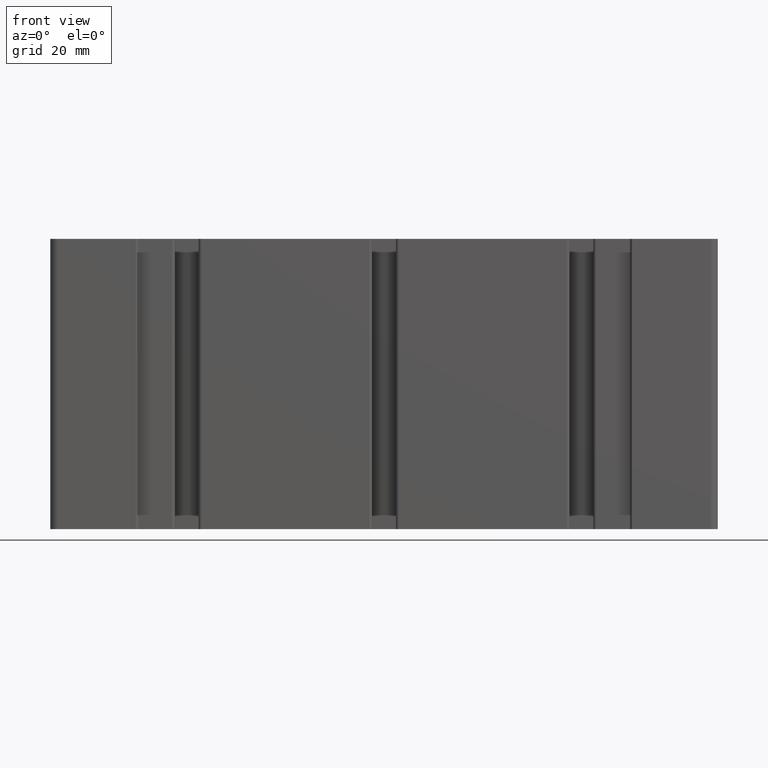
[diagram: clean part render]
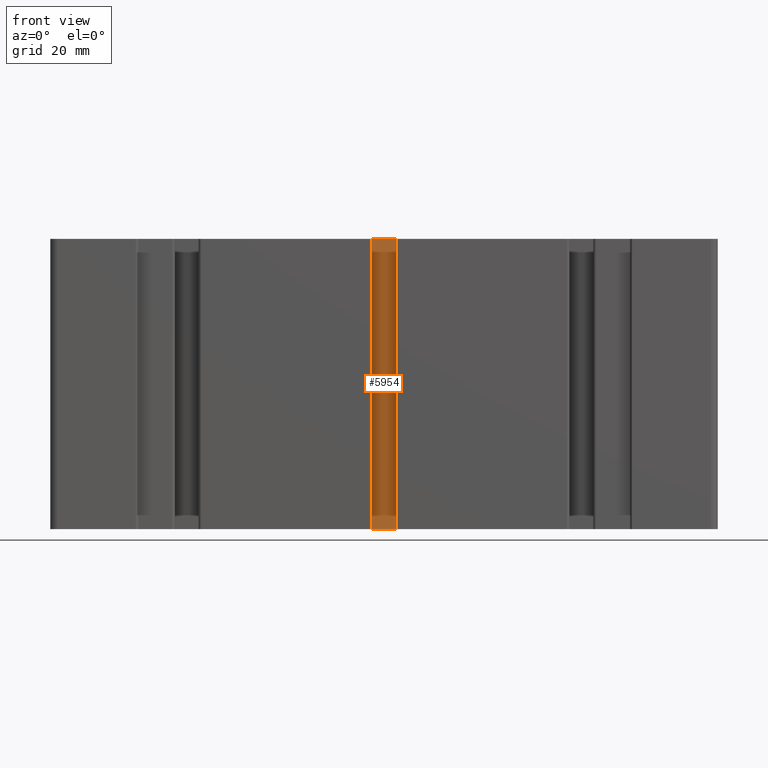
[diagram: same view with one face highlighted and labeled with its STEP entity id]
A machine part, front view. The second image highlights one B-rep face of the part: STEP entity #5954.
In plain terms, the highlighted planar face has unit normal (0, -1, 0).
Its self-contained STEP definition (entity closure, byte-faithful):
#61=PLANE('',#6321);
#315=FACE_OUTER_BOUND('',#622,.T.);
#622=EDGE_LOOP('',(#4251,#4252,#4253,#4254));
#993=LINE('',#8693,#1732);
#994=LINE('',#8696,#1733);
#995=LINE('',#8698,#1734);
#996=LINE('',#8699,#1735);
#1732=VECTOR('',#7026,100.);
#1733=VECTOR('',#7029,8.34314575050762);
#1734=VECTOR('',#7030,8.34314575050762);
#1735=VECTOR('',#7031,100.);
#2636=VERTEX_POINT('',#8689);
#2637=VERTEX_POINT('',#8691);
#2638=VERTEX_POINT('',#8695);
#2639=VERTEX_POINT('',#8697);
#3295=EDGE_CURVE('',#2636,#2637,#993,.T.);
#3296=EDGE_CURVE('',#2636,#2638,#994,.T.);
#3297=EDGE_CURVE('',#2639,#2637,#995,.T.);
#3298=EDGE_CURVE('',#2638,#2639,#996,.T.);
#4251=ORIENTED_EDGE('',*,*,#3296,.F.);
#4252=ORIENTED_EDGE('',*,*,#3295,.T.);
#4253=ORIENTED_EDGE('',*,*,#3297,.F.);
#4254=ORIENTED_EDGE('',*,*,#3298,.F.);
#5954=ADVANCED_FACE('',(#315),#61,.T.);
#6321=AXIS2_PLACEMENT_3D('',#8694,#7027,#7028);
#7026=DIRECTION('',(0.,0.,1.));
#7027=DIRECTION('center_axis',(0.,-1.,0.));
#7028=DIRECTION('ref_axis',(1.,0.,0.));
#7029=DIRECTION('',(-1.,0.,0.));
#7030=DIRECTION('',(1.,0.,0.));
#7031=DIRECTION('',(0.,0.,1.));
#8689=CARTESIAN_POINT('',(4.17157287525383,5.69999999999999,0.));
#8691=CARTESIAN_POINT('',(4.17157287525383,5.69999999999999,100.));
#8693=CARTESIAN_POINT('',(4.17157287525383,5.69999999999999,0.));
#8694=CARTESIAN_POINT('Origin',(-4.17157287525379,5.69999999999999,0.));
#8695=CARTESIAN_POINT('',(-4.17157287525379,5.69999999999999,0.));
#8696=CARTESIAN_POINT('',(4.17157287525383,5.69999999999999,0.));
#8697=CARTESIAN_POINT('',(-4.17157287525379,5.69999999999999,100.));
#8698=CARTESIAN_POINT('',(4.17157287525383,5.69999999999999,100.));
#8699=CARTESIAN_POINT('',(-4.17157287525379,5.69999999999999,0.));